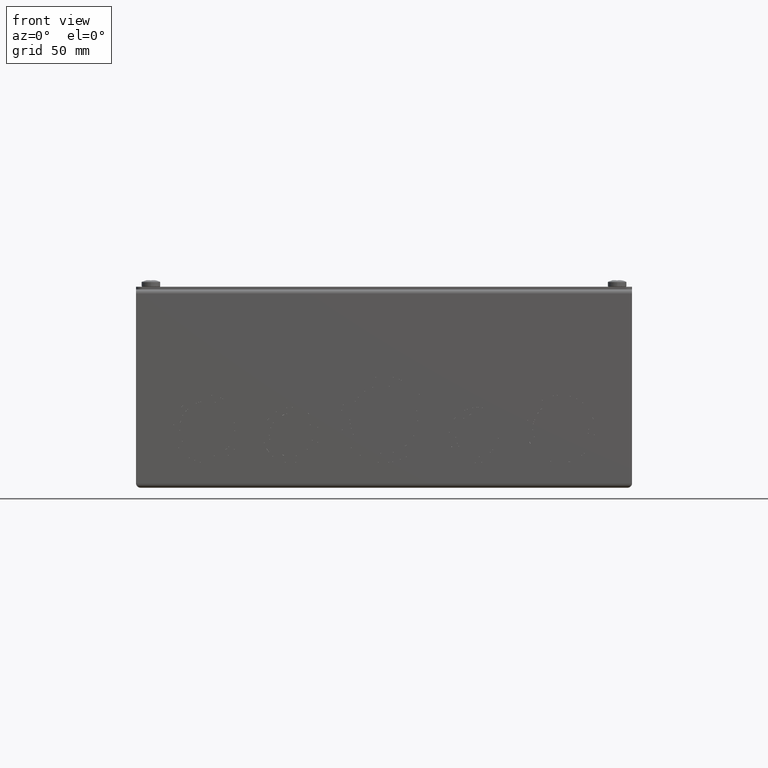
[diagram: clean part render]
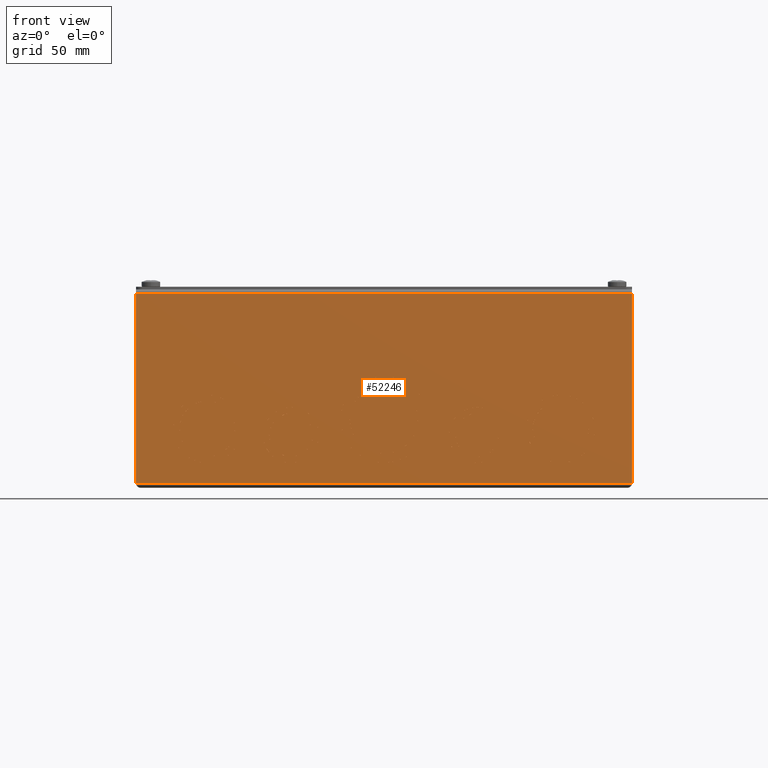
[diagram: same view with one face highlighted and labeled with its STEP entity id]
A machine part, front view. The second image highlights one B-rep face of the part: STEP entity #52246.
In plain terms, the highlighted planar face has unit normal (0, 1, 0).
Its self-contained STEP definition (entity closure, byte-faithful):
#4234=FACE_BOUND('',#9762,.T.);
#4235=FACE_BOUND('',#9763,.T.);
#4236=FACE_BOUND('',#9764,.T.);
#4237=FACE_BOUND('',#9765,.T.);
#4238=FACE_BOUND('',#9766,.T.);
#4239=FACE_BOUND('',#9767,.T.);
#4240=FACE_BOUND('',#9768,.T.);
#4241=FACE_BOUND('',#9769,.T.);
#4242=FACE_BOUND('',#9770,.T.);
#4243=FACE_BOUND('',#9771,.T.);
#4244=FACE_BOUND('',#9772,.T.);
#4245=FACE_BOUND('',#9773,.T.);
#4246=FACE_BOUND('',#9774,.T.);
#4247=FACE_BOUND('',#9775,.T.);
#4248=FACE_BOUND('',#9776,.T.);
#4249=FACE_BOUND('',#9777,.T.);
#4250=FACE_BOUND('',#9778,.T.);
#4251=FACE_BOUND('',#9779,.T.);
#4252=FACE_BOUND('',#9780,.T.);
#4253=FACE_BOUND('',#9781,.T.);
#4798=PLANE('',#55635);
#6811=FACE_OUTER_BOUND('',#9761,.T.);
#9761=EDGE_LOOP('',(#39174,#39175,#39176,#39177));
#9762=EDGE_LOOP('',(#39178,#39179,#39180,#39181));
#9763=EDGE_LOOP('',(#39182,#39183,#39184,#39185));
#9764=EDGE_LOOP('',(#39186,#39187,#39188,#39189));
#9765=EDGE_LOOP('',(#39190,#39191,#39192,#39193));
#9766=EDGE_LOOP('',(#39194,#39195,#39196,#39197));
#9767=EDGE_LOOP('',(#39198,#39199,#39200,#39201));
#9768=EDGE_LOOP('',(#39202,#39203,#39204,#39205));
#9769=EDGE_LOOP('',(#39206,#39207,#39208,#39209));
#9770=EDGE_LOOP('',(#39210,#39211,#39212,#39213));
#9771=EDGE_LOOP('',(#39214,#39215,#39216,#39217));
#9772=EDGE_LOOP('',(#39218,#39219,#39220,#39221));
#9773=EDGE_LOOP('',(#39222,#39223,#39224,#39225));
#9774=EDGE_LOOP('',(#39226,#39227,#39228,#39229));
#9775=EDGE_LOOP('',(#39230,#39231,#39232,#39233));
#9776=EDGE_LOOP('',(#39234,#39235,#39236,#39237));
#9777=EDGE_LOOP('',(#39238,#39239,#39240,#39241));
#9778=EDGE_LOOP('',(#39242,#39243,#39244,#39245));
#9779=EDGE_LOOP('',(#39246,#39247,#39248,#39249));
#9780=EDGE_LOOP('',(#39250,#39251,#39252,#39253));
#9781=EDGE_LOOP('',(#39254,#39255,#39256,#39257));
#12433=LINE('',#69019,#17938);
#12440=LINE('',#69038,#17945);
#12447=LINE('',#69055,#17952);
#12455=LINE('',#69082,#17960);
#12465=LINE('',#69115,#17970);
#12472=LINE('',#69134,#17977);
#12481=LINE('',#69163,#17986);
#12488=LINE('',#69182,#17993);
#12497=LINE('',#69211,#18002);
#12504=LINE('',#69230,#18009);
#12511=LINE('',#69247,#18016);
#12519=LINE('',#69274,#18024);
#12527=LINE('',#69295,#18032);
#12535=LINE('',#69322,#18040);
#12543=LINE('',#69343,#18048);
#12551=LINE('',#69370,#18056);
#12559=LINE('',#69391,#18064);
#12567=LINE('',#69418,#18072);
#12575=LINE('',#69439,#18080);
#12583=LINE('',#69466,#18088);
#12593=LINE('',#69499,#18098);
#12600=LINE('',#69518,#18105);
#12609=LINE('',#69547,#18114);
#12616=LINE('',#69566,#18121);
#12623=LINE('',#69583,#18128);
#12631=LINE('',#69610,#18136);
#12639=LINE('',#69631,#18144);
#12647=LINE('',#69658,#18152);
#12657=LINE('',#69691,#18162);
#12664=LINE('',#69710,#18169);
#12671=LINE('',#69727,#18176);
#12679=LINE('',#69754,#18184);
#12687=LINE('',#69775,#18192);
#12695=LINE('',#69802,#18200);
#12703=LINE('',#69823,#18208);
#12711=LINE('',#69850,#18216);
#12721=LINE('',#69883,#18226);
#12728=LINE('',#69902,#18233);
#12735=LINE('',#69919,#18240);
#12743=LINE('',#69946,#18248);
#13286=LINE('',#71463,#18791);
#13289=LINE('',#71469,#18794);
#13314=LINE('',#71946,#18819);
#13318=LINE('',#71954,#18823);
#17938=VECTOR('',#57817,0.393700787401575);
#17945=VECTOR('',#57840,0.393700787401575);
#17952=VECTOR('',#57851,0.393700787401575);
#17960=VECTOR('',#57881,0.393700787401575);
#17970=VECTOR('',#57913,0.393700787401575);
#17977=VECTOR('',#57936,0.393700787401575);
#17986=VECTOR('',#57961,0.393700787401575);
#17993=VECTOR('',#57984,0.393700787401575);
#18002=VECTOR('',#58009,0.393700787401575);
#18009=VECTOR('',#58032,0.393700787401575);
#18016=VECTOR('',#58043,0.393700787401575);
#18024=VECTOR('',#58073,0.393700787401575);
#18032=VECTOR('',#58091,0.393700787401575);
#18040=VECTOR('',#58121,0.393700787401575);
#18048=VECTOR('',#58139,0.393700787401575);
#18056=VECTOR('',#58169,0.393700787401575);
#18064=VECTOR('',#58187,0.393700787401575);
#18072=VECTOR('',#58217,0.393700787401575);
#18080=VECTOR('',#58235,0.393700787401575);
#18088=VECTOR('',#58265,0.393700787401575);
#18098=VECTOR('',#58297,0.393700787401575);
#18105=VECTOR('',#58320,0.393700787401575);
#18114=VECTOR('',#58345,0.393700787401575);
#18121=VECTOR('',#58368,0.393700787401575);
#18128=VECTOR('',#58379,0.393700787401575);
#18136=VECTOR('',#58409,0.393700787401575);
#18144=VECTOR('',#58427,0.393700787401575);
#18152=VECTOR('',#58457,0.393700787401575);
#18162=VECTOR('',#58489,0.393700787401575);
#18169=VECTOR('',#58512,0.393700787401575);
#18176=VECTOR('',#58523,0.393700787401575);
#18184=VECTOR('',#58553,0.393700787401575);
#18192=VECTOR('',#58571,0.393700787401575);
#18200=VECTOR('',#58601,0.393700787401575);
#18208=VECTOR('',#58619,0.393700787401575);
#18216=VECTOR('',#58649,0.393700787401575);
#18226=VECTOR('',#58681,0.393700787401575);
#18233=VECTOR('',#58704,0.393700787401575);
#18240=VECTOR('',#58715,0.393700787401575);
#18248=VECTOR('',#58745,0.393700787401575);
#18791=VECTOR('',#60282,0.393700787401575);
#18794=VECTOR('',#60287,0.393700787401575);
#18819=VECTOR('',#60362,0.393700787401575);
#18823=VECTOR('',#60374,0.393700787401575);
#23324=CIRCLE('',#54791,0.6875);
#23328=CIRCLE('',#54800,0.6874);
#23332=CIRCLE('',#54809,0.5625);
#23336=CIRCLE('',#54817,0.5624);
#23340=CIRCLE('',#54823,0.5624);
#23344=CIRCLE('',#54832,0.5625);
#23348=CIRCLE('',#54839,0.4374);
#23352=CIRCLE('',#54848,0.4375);
#23356=CIRCLE('',#54855,0.4374);
#23360=CIRCLE('',#54864,0.4375);
#23364=CIRCLE('',#54873,0.8749);
#23368=CIRCLE('',#54881,0.875);
#23372=CIRCLE('',#54889,0.6875);
#23376=CIRCLE('',#54897,0.6874);
#23380=CIRCLE('',#54905,0.6875);
#23384=CIRCLE('',#54913,0.6874);
#23388=CIRCLE('',#54921,0.5625);
#23392=CIRCLE('',#54929,0.5624);
#23396=CIRCLE('',#54937,0.5625);
#23400=CIRCLE('',#54945,0.5624);
#23404=CIRCLE('',#54951,0.5624);
#23408=CIRCLE('',#54960,0.5625);
#23412=CIRCLE('',#54967,0.5624);
#23416=CIRCLE('',#54976,0.5625);
#23420=CIRCLE('',#54985,0.6874);
#23424=CIRCLE('',#54993,0.6875);
#23428=CIRCLE('',#55001,0.6874);
#23432=CIRCLE('',#55009,0.6875);
#23436=CIRCLE('',#55015,0.875);
#23440=CIRCLE('',#55024,0.8749);
#23444=CIRCLE('',#55033,0.4375);
#23448=CIRCLE('',#55041,0.4374);
#23452=CIRCLE('',#55049,0.4375);
#23456=CIRCLE('',#55057,0.4374);
#23460=CIRCLE('',#55065,0.5625);
#23464=CIRCLE('',#55073,0.5624);
#23468=CIRCLE('',#55079,0.5624);
#23472=CIRCLE('',#55088,0.5625);
#23476=CIRCLE('',#55097,0.6874);
#23480=CIRCLE('',#55105,0.6875);
#24043=VERTEX_POINT('',#69004);
#24044=VERTEX_POINT('',#69006);
#24048=VERTEX_POINT('',#69018);
#24052=VERTEX_POINT('',#69033);
#24059=VERTEX_POINT('',#69052);
#24060=VERTEX_POINT('',#69054);
#24064=VERTEX_POINT('',#69066);
#24068=VERTEX_POINT('',#69081);
#24075=VERTEX_POINT('',#69100);
#24076=VERTEX_POINT('',#69102);
#24080=VERTEX_POINT('',#69114);
#24084=VERTEX_POINT('',#69129);
#24091=VERTEX_POINT('',#69148);
#24092=VERTEX_POINT('',#69150);
#24096=VERTEX_POINT('',#69162);
#24100=VERTEX_POINT('',#69177);
#24107=VERTEX_POINT('',#69196);
#24108=VERTEX_POINT('',#69198);
#24112=VERTEX_POINT('',#69210);
#24116=VERTEX_POINT('',#69225);
#24123=VERTEX_POINT('',#69244);
#24124=VERTEX_POINT('',#69246);
#24128=VERTEX_POINT('',#69258);
#24132=VERTEX_POINT('',#69273);
#24139=VERTEX_POINT('',#69292);
#24140=VERTEX_POINT('',#69294);
#24144=VERTEX_POINT('',#69306);
#24148=VERTEX_POINT('',#69321);
#24155=VERTEX_POINT('',#69340);
#24156=VERTEX_POINT('',#69342);
#24160=VERTEX_POINT('',#69354);
#24164=VERTEX_POINT('',#69369);
#24171=VERTEX_POINT('',#69388);
#24172=VERTEX_POINT('',#69390);
#24176=VERTEX_POINT('',#69402);
#24180=VERTEX_POINT('',#69417);
#24187=VERTEX_POINT('',#69436);
#24188=VERTEX_POINT('',#69438);
#24192=VERTEX_POINT('',#69450);
#24196=VERTEX_POINT('',#69465);
#24203=VERTEX_POINT('',#69484);
#24204=VERTEX_POINT('',#69486);
#24208=VERTEX_POINT('',#69498);
#24212=VERTEX_POINT('',#69513);
#24219=VERTEX_POINT('',#69532);
#24220=VERTEX_POINT('',#69534);
#24224=VERTEX_POINT('',#69546);
#24228=VERTEX_POINT('',#69561);
#24235=VERTEX_POINT('',#69580);
#24236=VERTEX_POINT('',#69582);
#24240=VERTEX_POINT('',#69594);
#24244=VERTEX_POINT('',#69609);
#24251=VERTEX_POINT('',#69628);
#24252=VERTEX_POINT('',#69630);
#24256=VERTEX_POINT('',#69642);
#24260=VERTEX_POINT('',#69657);
#24267=VERTEX_POINT('',#69676);
#24268=VERTEX_POINT('',#69678);
#24272=VERTEX_POINT('',#69690);
#24276=VERTEX_POINT('',#69705);
#24283=VERTEX_POINT('',#69724);
#24284=VERTEX_POINT('',#69726);
#24288=VERTEX_POINT('',#69738);
#24292=VERTEX_POINT('',#69753);
#24299=VERTEX_POINT('',#69772);
#24300=VERTEX_POINT('',#69774);
#24304=VERTEX_POINT('',#69786);
#24308=VERTEX_POINT('',#69801);
#24315=VERTEX_POINT('',#69820);
#24316=VERTEX_POINT('',#69822);
#24320=VERTEX_POINT('',#69834);
#24324=VERTEX_POINT('',#69849);
#24331=VERTEX_POINT('',#69868);
#24332=VERTEX_POINT('',#69870);
#24336=VERTEX_POINT('',#69882);
#24340=VERTEX_POINT('',#69897);
#24347=VERTEX_POINT('',#69916);
#24348=VERTEX_POINT('',#69918);
#24352=VERTEX_POINT('',#69930);
#24356=VERTEX_POINT('',#69945);
#24832=VERTEX_POINT('',#71450);
#24833=VERTEX_POINT('',#71454);
#24835=VERTEX_POINT('',#71467);
#24849=VERTEX_POINT('',#71614);
#29036=EDGE_CURVE('',#24044,#24043,#23324,.T.);
#29042=EDGE_CURVE('',#24048,#24044,#12433,.T.);
#29050=EDGE_CURVE('',#24052,#24048,#23328,.T.);
#29053=EDGE_CURVE('',#24043,#24052,#12440,.T.);
#29060=EDGE_CURVE('',#24060,#24059,#12447,.T.);
#29066=EDGE_CURVE('',#24064,#24060,#23332,.T.);
#29074=EDGE_CURVE('',#24068,#24064,#12455,.T.);
#29077=EDGE_CURVE('',#24059,#24068,#23336,.T.);
#29084=EDGE_CURVE('',#24076,#24075,#23340,.T.);
#29090=EDGE_CURVE('',#24080,#24076,#12465,.T.);
#29098=EDGE_CURVE('',#24084,#24080,#23344,.T.);
#29101=EDGE_CURVE('',#24075,#24084,#12472,.T.);
#29108=EDGE_CURVE('',#24092,#24091,#23348,.T.);
#29114=EDGE_CURVE('',#24096,#24092,#12481,.T.);
#29122=EDGE_CURVE('',#24100,#24096,#23352,.T.);
#29125=EDGE_CURVE('',#24091,#24100,#12488,.T.);
#29132=EDGE_CURVE('',#24108,#24107,#23356,.T.);
#29138=EDGE_CURVE('',#24112,#24108,#12497,.T.);
#29146=EDGE_CURVE('',#24116,#24112,#23360,.T.);
#29149=EDGE_CURVE('',#24107,#24116,#12504,.T.);
#29156=EDGE_CURVE('',#24124,#24123,#12511,.T.);
#29162=EDGE_CURVE('',#24128,#24124,#23364,.T.);
#29170=EDGE_CURVE('',#24132,#24128,#12519,.T.);
#29173=EDGE_CURVE('',#24123,#24132,#23368,.T.);
#29180=EDGE_CURVE('',#24140,#24139,#12527,.T.);
#29186=EDGE_CURVE('',#24144,#24140,#23372,.T.);
#29194=EDGE_CURVE('',#24148,#24144,#12535,.T.);
#29197=EDGE_CURVE('',#24139,#24148,#23376,.T.);
#29204=EDGE_CURVE('',#24156,#24155,#12543,.T.);
#29210=EDGE_CURVE('',#24160,#24156,#23380,.T.);
#29218=EDGE_CURVE('',#24164,#24160,#12551,.T.);
#29221=EDGE_CURVE('',#24155,#24164,#23384,.T.);
#29228=EDGE_CURVE('',#24172,#24171,#12559,.T.);
#29234=EDGE_CURVE('',#24176,#24172,#23388,.T.);
#29242=EDGE_CURVE('',#24180,#24176,#12567,.T.);
#29245=EDGE_CURVE('',#24171,#24180,#23392,.T.);
#29252=EDGE_CURVE('',#24188,#24187,#12575,.T.);
#29258=EDGE_CURVE('',#24192,#24188,#23396,.T.);
#29266=EDGE_CURVE('',#24196,#24192,#12583,.T.);
#29269=EDGE_CURVE('',#24187,#24196,#23400,.T.);
#29276=EDGE_CURVE('',#24204,#24203,#23404,.T.);
#29282=EDGE_CURVE('',#24208,#24204,#12593,.T.);
#29290=EDGE_CURVE('',#24212,#24208,#23408,.T.);
#29293=EDGE_CURVE('',#24203,#24212,#12600,.T.);
#29300=EDGE_CURVE('',#24220,#24219,#23412,.T.);
#29306=EDGE_CURVE('',#24224,#24220,#12609,.T.);
#29314=EDGE_CURVE('',#24228,#24224,#23416,.T.);
#29317=EDGE_CURVE('',#24219,#24228,#12616,.T.);
#29324=EDGE_CURVE('',#24236,#24235,#12623,.T.);
#29330=EDGE_CURVE('',#24240,#24236,#23420,.T.);
#29338=EDGE_CURVE('',#24244,#24240,#12631,.T.);
#29341=EDGE_CURVE('',#24235,#24244,#23424,.T.);
#29348=EDGE_CURVE('',#24252,#24251,#12639,.T.);
#29354=EDGE_CURVE('',#24256,#24252,#23428,.T.);
#29362=EDGE_CURVE('',#24260,#24256,#12647,.T.);
#29365=EDGE_CURVE('',#24251,#24260,#23432,.T.);
#29372=EDGE_CURVE('',#24268,#24267,#23436,.T.);
#29378=EDGE_CURVE('',#24272,#24268,#12657,.T.);
#29386=EDGE_CURVE('',#24276,#24272,#23440,.T.);
#29389=EDGE_CURVE('',#24267,#24276,#12664,.T.);
#29396=EDGE_CURVE('',#24284,#24283,#12671,.T.);
#29402=EDGE_CURVE('',#24288,#24284,#23444,.T.);
#29410=EDGE_CURVE('',#24292,#24288,#12679,.T.);
#29413=EDGE_CURVE('',#24283,#24292,#23448,.T.);
#29420=EDGE_CURVE('',#24300,#24299,#12687,.T.);
#29426=EDGE_CURVE('',#24304,#24300,#23452,.T.);
#29434=EDGE_CURVE('',#24308,#24304,#12695,.T.);
#29437=EDGE_CURVE('',#24299,#24308,#23456,.T.);
#29444=EDGE_CURVE('',#24316,#24315,#12703,.T.);
#29450=EDGE_CURVE('',#24320,#24316,#23460,.T.);
#29458=EDGE_CURVE('',#24324,#24320,#12711,.T.);
#29461=EDGE_CURVE('',#24315,#24324,#23464,.T.);
#29468=EDGE_CURVE('',#24332,#24331,#23468,.T.);
#29474=EDGE_CURVE('',#24336,#24332,#12721,.T.);
#29482=EDGE_CURVE('',#24340,#24336,#23472,.T.);
#29485=EDGE_CURVE('',#24331,#24340,#12728,.T.);
#29492=EDGE_CURVE('',#24348,#24347,#12735,.T.);
#29498=EDGE_CURVE('',#24352,#24348,#23476,.T.);
#29506=EDGE_CURVE('',#24356,#24352,#12743,.T.);
#29509=EDGE_CURVE('',#24347,#24356,#23480,.T.);
#30267=EDGE_CURVE('',#24832,#24833,#13286,.T.);
#30270=EDGE_CURVE('',#24833,#24835,#13289,.T.);
#30311=EDGE_CURVE('',#24835,#24849,#13314,.T.);
#30315=EDGE_CURVE('',#24849,#24832,#13318,.T.);
#39174=ORIENTED_EDGE('',*,*,#30267,.T.);
#39175=ORIENTED_EDGE('',*,*,#30270,.T.);
#39176=ORIENTED_EDGE('',*,*,#30311,.T.);
#39177=ORIENTED_EDGE('',*,*,#30315,.T.);
#39178=ORIENTED_EDGE('',*,*,#29050,.T.);
#39179=ORIENTED_EDGE('',*,*,#29042,.T.);
#39180=ORIENTED_EDGE('',*,*,#29036,.T.);
#39181=ORIENTED_EDGE('',*,*,#29053,.T.);
#39182=ORIENTED_EDGE('',*,*,#29074,.T.);
#39183=ORIENTED_EDGE('',*,*,#29066,.T.);
#39184=ORIENTED_EDGE('',*,*,#29060,.T.);
#39185=ORIENTED_EDGE('',*,*,#29077,.T.);
#39186=ORIENTED_EDGE('',*,*,#29098,.T.);
#39187=ORIENTED_EDGE('',*,*,#29090,.T.);
#39188=ORIENTED_EDGE('',*,*,#29084,.T.);
#39189=ORIENTED_EDGE('',*,*,#29101,.T.);
#39190=ORIENTED_EDGE('',*,*,#29122,.T.);
#39191=ORIENTED_EDGE('',*,*,#29114,.T.);
#39192=ORIENTED_EDGE('',*,*,#29108,.T.);
#39193=ORIENTED_EDGE('',*,*,#29125,.T.);
#39194=ORIENTED_EDGE('',*,*,#29146,.T.);
#39195=ORIENTED_EDGE('',*,*,#29138,.T.);
#39196=ORIENTED_EDGE('',*,*,#29132,.T.);
#39197=ORIENTED_EDGE('',*,*,#29149,.T.);
#39198=ORIENTED_EDGE('',*,*,#29170,.T.);
#39199=ORIENTED_EDGE('',*,*,#29162,.T.);
#39200=ORIENTED_EDGE('',*,*,#29156,.T.);
#39201=ORIENTED_EDGE('',*,*,#29173,.T.);
#39202=ORIENTED_EDGE('',*,*,#29194,.T.);
#39203=ORIENTED_EDGE('',*,*,#29186,.T.);
#39204=ORIENTED_EDGE('',*,*,#29180,.T.);
#39205=ORIENTED_EDGE('',*,*,#29197,.T.);
#39206=ORIENTED_EDGE('',*,*,#29218,.T.);
#39207=ORIENTED_EDGE('',*,*,#29210,.T.);
#39208=ORIENTED_EDGE('',*,*,#29204,.T.);
#39209=ORIENTED_EDGE('',*,*,#29221,.T.);
#39210=ORIENTED_EDGE('',*,*,#29242,.T.);
#39211=ORIENTED_EDGE('',*,*,#29234,.T.);
#39212=ORIENTED_EDGE('',*,*,#29228,.T.);
#39213=ORIENTED_EDGE('',*,*,#29245,.T.);
#39214=ORIENTED_EDGE('',*,*,#29266,.T.);
#39215=ORIENTED_EDGE('',*,*,#29258,.T.);
#39216=ORIENTED_EDGE('',*,*,#29252,.T.);
#39217=ORIENTED_EDGE('',*,*,#29269,.T.);
#39218=ORIENTED_EDGE('',*,*,#29290,.T.);
#39219=ORIENTED_EDGE('',*,*,#29282,.T.);
#39220=ORIENTED_EDGE('',*,*,#29276,.T.);
#39221=ORIENTED_EDGE('',*,*,#29293,.T.);
#39222=ORIENTED_EDGE('',*,*,#29314,.T.);
#39223=ORIENTED_EDGE('',*,*,#29306,.T.);
#39224=ORIENTED_EDGE('',*,*,#29300,.T.);
#39225=ORIENTED_EDGE('',*,*,#29317,.T.);
#39226=ORIENTED_EDGE('',*,*,#29338,.T.);
#39227=ORIENTED_EDGE('',*,*,#29330,.T.);
#39228=ORIENTED_EDGE('',*,*,#29324,.T.);
#39229=ORIENTED_EDGE('',*,*,#29341,.T.);
#39230=ORIENTED_EDGE('',*,*,#29362,.T.);
#39231=ORIENTED_EDGE('',*,*,#29354,.T.);
#39232=ORIENTED_EDGE('',*,*,#29348,.T.);
#39233=ORIENTED_EDGE('',*,*,#29365,.T.);
#39234=ORIENTED_EDGE('',*,*,#29386,.T.);
#39235=ORIENTED_EDGE('',*,*,#29378,.T.);
#39236=ORIENTED_EDGE('',*,*,#29372,.T.);
#39237=ORIENTED_EDGE('',*,*,#29389,.T.);
#39238=ORIENTED_EDGE('',*,*,#29410,.T.);
#39239=ORIENTED_EDGE('',*,*,#29402,.T.);
#39240=ORIENTED_EDGE('',*,*,#29396,.T.);
#39241=ORIENTED_EDGE('',*,*,#29413,.T.);
#39242=ORIENTED_EDGE('',*,*,#29434,.T.);
#39243=ORIENTED_EDGE('',*,*,#29426,.T.);
#39244=ORIENTED_EDGE('',*,*,#29420,.T.);
#39245=ORIENTED_EDGE('',*,*,#29437,.T.);
#39246=ORIENTED_EDGE('',*,*,#29458,.T.);
#39247=ORIENTED_EDGE('',*,*,#29450,.T.);
#39248=ORIENTED_EDGE('',*,*,#29444,.T.);
#39249=ORIENTED_EDGE('',*,*,#29461,.T.);
#39250=ORIENTED_EDGE('',*,*,#29482,.T.);
#39251=ORIENTED_EDGE('',*,*,#29474,.T.);
#39252=ORIENTED_EDGE('',*,*,#29468,.T.);
#39253=ORIENTED_EDGE('',*,*,#29485,.T.);
#39254=ORIENTED_EDGE('',*,*,#29506,.T.);
#39255=ORIENTED_EDGE('',*,*,#29498,.T.);
#39256=ORIENTED_EDGE('',*,*,#29492,.T.);
#39257=ORIENTED_EDGE('',*,*,#29509,.T.);
#52246=ADVANCED_FACE('',(#6811,#4234,#4235,#4236,#4237,#4238,#4239,#4240,
#4241,#4242,#4243,#4244,#4245,#4246,#4247,#4248,#4249,#4250,#4251,#4252,
#4253),#4798,.F.);
#54791=AXIS2_PLACEMENT_3D('',#69007,#57806,#57807);
#54800=AXIS2_PLACEMENT_3D('',#69034,#57834,#57835);
#54809=AXIS2_PLACEMENT_3D('',#69067,#57864,#57865);
#54817=AXIS2_PLACEMENT_3D('',#69086,#57887,#57888);
#54823=AXIS2_PLACEMENT_3D('',#69103,#57902,#57903);
#54832=AXIS2_PLACEMENT_3D('',#69130,#57930,#57931);
#54839=AXIS2_PLACEMENT_3D('',#69151,#57950,#57951);
#54848=AXIS2_PLACEMENT_3D('',#69178,#57978,#57979);
#54855=AXIS2_PLACEMENT_3D('',#69199,#57998,#57999);
#54864=AXIS2_PLACEMENT_3D('',#69226,#58026,#58027);
#54873=AXIS2_PLACEMENT_3D('',#69259,#58056,#58057);
#54881=AXIS2_PLACEMENT_3D('',#69278,#58079,#58080);
#54889=AXIS2_PLACEMENT_3D('',#69307,#58104,#58105);
#54897=AXIS2_PLACEMENT_3D('',#69326,#58127,#58128);
#54905=AXIS2_PLACEMENT_3D('',#69355,#58152,#58153);
#54913=AXIS2_PLACEMENT_3D('',#69374,#58175,#58176);
#54921=AXIS2_PLACEMENT_3D('',#69403,#58200,#58201);
#54929=AXIS2_PLACEMENT_3D('',#69422,#58223,#58224);
#54937=AXIS2_PLACEMENT_3D('',#69451,#58248,#58249);
#54945=AXIS2_PLACEMENT_3D('',#69470,#58271,#58272);
#54951=AXIS2_PLACEMENT_3D('',#69487,#58286,#58287);
#54960=AXIS2_PLACEMENT_3D('',#69514,#58314,#58315);
#54967=AXIS2_PLACEMENT_3D('',#69535,#58334,#58335);
#54976=AXIS2_PLACEMENT_3D('',#69562,#58362,#58363);
#54985=AXIS2_PLACEMENT_3D('',#69595,#58392,#58393);
#54993=AXIS2_PLACEMENT_3D('',#69614,#58415,#58416);
#55001=AXIS2_PLACEMENT_3D('',#69643,#58440,#58441);
#55009=AXIS2_PLACEMENT_3D('',#69662,#58463,#58464);
#55015=AXIS2_PLACEMENT_3D('',#69679,#58478,#58479);
#55024=AXIS2_PLACEMENT_3D('',#69706,#58506,#58507);
#55033=AXIS2_PLACEMENT_3D('',#69739,#58536,#58537);
#55041=AXIS2_PLACEMENT_3D('',#69758,#58559,#58560);
#55049=AXIS2_PLACEMENT_3D('',#69787,#58584,#58585);
#55057=AXIS2_PLACEMENT_3D('',#69806,#58607,#58608);
#55065=AXIS2_PLACEMENT_3D('',#69835,#58632,#58633);
#55073=AXIS2_PLACEMENT_3D('',#69854,#58655,#58656);
#55079=AXIS2_PLACEMENT_3D('',#69871,#58670,#58671);
#55088=AXIS2_PLACEMENT_3D('',#69898,#58698,#58699);
#55097=AXIS2_PLACEMENT_3D('',#69931,#58728,#58729);
#55105=AXIS2_PLACEMENT_3D('',#69950,#58751,#58752);
#55635=AXIS2_PLACEMENT_3D('',#71962,#60387,#60388);
#57806=DIRECTION('center_axis',(1.75198115615465E-32,1.,3.37621368633969E-31));
#57807=DIRECTION('ref_axis',(-1.,0.,0.));
#57817=DIRECTION('',(2.17642743684023E-13,3.37621368633965E-31,-1.));
#57834=DIRECTION('center_axis',(-1.75198115615465E-32,-1.,-3.37621368633969E-31));
#57835=DIRECTION('ref_axis',(1.,0.,0.));
#57840=DIRECTION('',(-3.26464115526035E-13,3.37621368633975E-31,-1.));
#57851=DIRECTION('',(1.39316847513431E-11,-3.37621368634213E-31,1.));
#57864=DIRECTION('center_axis',(1.75198115615465E-32,1.,3.37621368633969E-31));
#57865=DIRECTION('ref_axis',(-1.,0.,0.));
#57881=DIRECTION('',(-1.39316847513552E-11,-3.37621368633725E-31,1.));
#57887=DIRECTION('center_axis',(-1.75198115615465E-32,-1.,-3.37621368633969E-31));
#57888=DIRECTION('ref_axis',(1.,0.,0.));
#57902=DIRECTION('center_axis',(-1.75198115615465E-32,-1.,-3.37621368633969E-31));
#57903=DIRECTION('ref_axis',(1.,0.,0.));
#57913=DIRECTION('',(-1.39316847513552E-11,3.37621368634213E-31,-1.));
#57930=DIRECTION('center_axis',(1.75198115615465E-32,1.,3.37621368633969E-31));
#57931=DIRECTION('ref_axis',(-1.,0.,0.));
#57936=DIRECTION('',(1.39316847513431E-11,3.37621368633725E-31,-1.));
#57950=DIRECTION('center_axis',(-1.75198115615465E-32,-1.,-3.37621368633969E-31));
#57951=DIRECTION('ref_axis',(1.,0.,0.));
#57961=DIRECTION('',(-6.96423270686278E-12,-3.37621368633847E-31,1.));
#57978=DIRECTION('center_axis',(1.75198115615465E-32,1.,3.37621368633969E-31));
#57979=DIRECTION('ref_axis',(-1.,0.,0.));
#57984=DIRECTION('',(5.91506275761856E-63,-3.37621368633969E-31,1.));
#57998=DIRECTION('center_axis',(-1.75198115615465E-32,-1.,-3.37621368633969E-31));
#57999=DIRECTION('ref_axis',(1.,0.,0.));
#58009=DIRECTION('',(6.96423270685065E-12,-3.37621368634091E-31,1.));
#58026=DIRECTION('center_axis',(1.75198115615465E-32,1.,3.37621368633969E-31));
#58027=DIRECTION('ref_axis',(-1.,0.,0.));
#58032=DIRECTION('',(-6.96423270685671E-12,-3.37621368633847E-31,1.));
#58043=DIRECTION('',(-1.,1.75198115615465E-32,0.));
#58056=DIRECTION('center_axis',(-1.75198115615465E-32,-1.,-3.37621368633969E-31));
#58057=DIRECTION('ref_axis',(1.,0.,0.));
#58073=DIRECTION('',(-1.,1.75198115615465E-32,0.));
#58079=DIRECTION('center_axis',(1.75198115615465E-32,1.,3.37621368633969E-31));
#58080=DIRECTION('ref_axis',(-1.,0.,0.));
#58091=DIRECTION('',(1.,-1.75198115609586E-32,-1.74114194947218E-12));
#58104=DIRECTION('center_axis',(1.75198115615465E-32,1.,3.37621368633969E-31));
#58105=DIRECTION('ref_axis',(-1.,0.,0.));
#58121=DIRECTION('',(1.,-1.7519811559783E-32,-5.22342584843474E-12));
#58127=DIRECTION('center_axis',(-1.75198115615465E-32,-1.,-3.37621368633969E-31));
#58128=DIRECTION('ref_axis',(1.,0.,0.));
#58139=DIRECTION('',(1.,-1.75198115609586E-32,-1.74114194947825E-12));
#58152=DIRECTION('center_axis',(1.75198115615465E-32,1.,3.37621368633969E-31));
#58153=DIRECTION('ref_axis',(-1.,0.,0.));
#58169=DIRECTION('',(1.,-1.75198115621343E-32,1.74114194947218E-12));
#58175=DIRECTION('center_axis',(-1.75198115615465E-32,-1.,-3.37621368633969E-31));
#58176=DIRECTION('ref_axis',(1.,0.,0.));
#58187=DIRECTION('',(-1.,1.75198115609585E-32,1.74146059391334E-12));
#58200=DIRECTION('center_axis',(1.75198115615465E-32,1.,3.37621368633969E-31));
#58201=DIRECTION('ref_axis',(-1.,0.,0.));
#58217=DIRECTION('',(-1.,1.75198115621344E-32,-1.74146059392547E-12));
#58223=DIRECTION('center_axis',(-1.75198115615465E-32,-1.,-3.37621368633969E-31));
#58224=DIRECTION('ref_axis',(1.,0.,0.));
#58235=DIRECTION('',(-1.,1.75198115609585E-32,1.7414605939194E-12));
#58248=DIRECTION('center_axis',(1.75198115615465E-32,1.,3.37621368633969E-31));
#58249=DIRECTION('ref_axis',(-1.,0.,0.));
#58265=DIRECTION('',(-1.,1.75198115621344E-32,-1.7414605939194E-12));
#58271=DIRECTION('center_axis',(-1.75198115615465E-32,-1.,-3.37621368633969E-31));
#58272=DIRECTION('ref_axis',(1.,0.,0.));
#58286=DIRECTION('center_axis',(-1.75198115615465E-32,-1.,-3.37621368633969E-31));
#58287=DIRECTION('ref_axis',(1.,0.,0.));
#58297=DIRECTION('',(1.,-1.75198115609585E-32,-1.7414605939194E-12));
#58314=DIRECTION('center_axis',(1.75198115615465E-32,1.,3.37621368633969E-31));
#58315=DIRECTION('ref_axis',(-1.,0.,0.));
#58320=DIRECTION('',(1.,-1.75198115621344E-32,1.7414605939194E-12));
#58334=DIRECTION('center_axis',(-1.75198115615465E-32,-1.,-3.37621368633969E-31));
#58335=DIRECTION('ref_axis',(1.,0.,0.));
#58345=DIRECTION('',(1.,-1.75198115609585E-32,-1.74146059392547E-12));
#58362=DIRECTION('center_axis',(1.75198115615465E-32,1.,3.37621368633969E-31));
#58363=DIRECTION('ref_axis',(-1.,0.,0.));
#58368=DIRECTION('',(1.,-1.75198115621344E-32,1.74146059391334E-12));
#58379=DIRECTION('',(-1.,1.75198115609586E-32,1.74114194947825E-12));
#58392=DIRECTION('center_axis',(-1.75198115615465E-32,-1.,-3.37621368633969E-31));
#58393=DIRECTION('ref_axis',(1.,0.,0.));
#58409=DIRECTION('',(-1.,1.75198115621343E-32,-1.74114194947218E-12));
#58415=DIRECTION('center_axis',(1.75198115615465E-32,1.,3.37621368633969E-31));
#58416=DIRECTION('ref_axis',(-1.,0.,0.));
#58427=DIRECTION('',(-1.,1.75198115609586E-32,1.74114194947218E-12));
#58440=DIRECTION('center_axis',(-1.75198115615465E-32,-1.,-3.37621368633969E-31));
#58441=DIRECTION('ref_axis',(1.,0.,0.));
#58457=DIRECTION('',(-1.,1.75198115609586E-32,1.74114194947825E-12));
#58463=DIRECTION('center_axis',(1.75198115615465E-32,1.,3.37621368633969E-31));
#58464=DIRECTION('ref_axis',(-1.,0.,0.));
#58478=DIRECTION('center_axis',(1.75198115615465E-32,1.,3.37621368633969E-31));
#58479=DIRECTION('ref_axis',(-1.,0.,0.));
#58489=DIRECTION('',(1.,-1.75198115615465E-32,0.));
#58506=DIRECTION('center_axis',(-1.75198115615465E-32,-1.,-3.37621368633969E-31));
#58507=DIRECTION('ref_axis',(1.,0.,0.));
#58512=DIRECTION('',(1.,-1.75198115615465E-32,0.));
#58523=DIRECTION('',(-5.91506275761856E-63,3.37621368633969E-31,-1.));
#58536=DIRECTION('center_axis',(1.75198115615465E-32,1.,3.37621368633969E-31));
#58537=DIRECTION('ref_axis',(-1.,0.,0.));
#58553=DIRECTION('',(-5.91506275761856E-63,3.37621368633969E-31,-1.));
#58559=DIRECTION('center_axis',(-1.75198115615465E-32,-1.,-3.37621368633969E-31));
#58560=DIRECTION('ref_axis',(1.,0.,0.));
#58571=DIRECTION('',(-6.96423270685671E-12,3.37621368634091E-31,-1.));
#58584=DIRECTION('center_axis',(1.75198115615465E-32,1.,3.37621368633969E-31));
#58585=DIRECTION('ref_axis',(-1.,0.,0.));
#58601=DIRECTION('',(6.96423270685671E-12,3.37621368633847E-31,-1.));
#58607=DIRECTION('center_axis',(-1.75198115615465E-32,-1.,-3.37621368633969E-31));
#58608=DIRECTION('ref_axis',(1.,0.,0.));
#58619=DIRECTION('',(-1.39316847513795E-11,-3.37621368633725E-31,1.));
#58632=DIRECTION('center_axis',(1.75198115615465E-32,1.,3.37621368633969E-31));
#58633=DIRECTION('ref_axis',(-1.,0.,0.));
#58649=DIRECTION('',(1.39316847513552E-11,-3.37621368634213E-31,1.));
#58655=DIRECTION('center_axis',(-1.75198115615465E-32,-1.,-3.37621368633969E-31));
#58656=DIRECTION('ref_axis',(1.,0.,0.));
#58670=DIRECTION('center_axis',(-1.75198115615465E-32,-1.,-3.37621368633969E-31));
#58671=DIRECTION('ref_axis',(1.,0.,0.));
#58681=DIRECTION('',(-5.91506275761856E-63,3.37621368633969E-31,-1.));
#58698=DIRECTION('center_axis',(1.75198115615465E-32,1.,3.37621368633969E-31));
#58699=DIRECTION('ref_axis',(-1.,0.,0.));
#58704=DIRECTION('',(-5.91506275761856E-63,3.37621368633969E-31,-1.));
#58715=DIRECTION('',(3.26464115526035E-13,-3.37621368633975E-31,1.));
#58728=DIRECTION('center_axis',(-1.75198115615465E-32,-1.,-3.37621368633969E-31));
#58729=DIRECTION('ref_axis',(1.,0.,0.));
#58745=DIRECTION('',(-2.17642743684023E-13,-3.37621368633965E-31,1.));
#58751=DIRECTION('center_axis',(1.75198115615465E-32,1.,3.37621368633969E-31));
#58752=DIRECTION('ref_axis',(-1.,0.,0.));
#60282=DIRECTION('',(-1.,1.75198115615465E-32,0.));
#60287=DIRECTION('',(0.,-6.12323399573677E-17,-1.));
#60362=DIRECTION('',(1.,-1.75198115615465E-32,0.));
#60374=DIRECTION('',(0.,6.12323399573677E-17,1.));
#60387=DIRECTION('center_axis',(1.75198115615465E-32,1.,3.37621368633969E-31));
#60388=DIRECTION('ref_axis',(0.,-3.37621368633969E-31,1.));
#69004=CARTESIAN_POINT('',(-0.0624999999999997,-5.,2.05965319688146));
#69006=CARTESIAN_POINT('',(-0.0624999999999999,-5.,0.690346803118542));
#69007=CARTESIAN_POINT('Origin',(1.74838271594513E-16,-5.,1.375));
#69018=CARTESIAN_POINT('',(-0.0624999999999999,-5.,0.690447218981619));
#69019=CARTESIAN_POINT('',(-0.0625000000001424,-5.,1.34517340155926));
#69033=CARTESIAN_POINT('',(-0.0624999999999997,-5.,2.05955278101838));
#69034=CARTESIAN_POINT('Origin',(1.74838271594513E-16,-5.,1.375));
#69038=CARTESIAN_POINT('',(-0.0625000000000095,-5.,2.0297763905092));
#69052=CARTESIAN_POINT('',(3.613,-5.,0.627327026714069));
#69054=CARTESIAN_POINT('',(3.613,-5.,0.627226629224626));
#69055=CARTESIAN_POINT('',(3.61300000000956,-5.,1.31366351333187));
#69066=CARTESIAN_POINT('',(3.613,-5.,1.74777337077537));
#69067=CARTESIAN_POINT('Origin',(3.563,-5.,1.1875));
#69081=CARTESIAN_POINT('',(3.613,-5.,1.74767297328593));
#69082=CARTESIAN_POINT('',(3.61299999999824,-5.,1.87388668541285));
#69086=CARTESIAN_POINT('Origin',(3.563,-5.,1.1875));
#69100=CARTESIAN_POINT('',(-3.613,-5.,0.627327026714069));
#69102=CARTESIAN_POINT('',(-3.613,-5.,1.74767297328593));
#69103=CARTESIAN_POINT('Origin',(-3.563,-5.,1.1875));
#69114=CARTESIAN_POINT('',(-3.613,-5.,1.74777337077537));
#69115=CARTESIAN_POINT('',(-3.61299999999824,-5.,1.87383648666813));
#69129=CARTESIAN_POINT('',(-3.613,-5.,0.627226629224626));
#69130=CARTESIAN_POINT('Origin',(-3.563,-5.,1.1875));
#69134=CARTESIAN_POINT('',(-3.61300000000956,-5.,1.31361331458714));
#69148=CARTESIAN_POINT('',(1.915,-5.,1.49806717048005));
#69150=CARTESIAN_POINT('',(1.915,-5.,0.626932829519946));
#69151=CARTESIAN_POINT('Origin',(1.875,-5.,1.0625));
#69162=CARTESIAN_POINT('',(1.915,-5.,0.62683240882526));
#69163=CARTESIAN_POINT('',(1.91499999999522,-5.,1.31346641476664));
#69177=CARTESIAN_POINT('',(1.915,-5.,1.49816759117474));
#69178=CARTESIAN_POINT('Origin',(1.875,-5.,1.0625));
#69182=CARTESIAN_POINT('',(1.915,-5.,1.74908379558737));
#69196=CARTESIAN_POINT('',(-1.835,-5.,1.49806717048005));
#69198=CARTESIAN_POINT('',(-1.835,-5.,0.626932829519946));
#69199=CARTESIAN_POINT('Origin',(-1.875,-5.,1.0625));
#69210=CARTESIAN_POINT('',(-1.835,-5.,0.62683240882526));
#69211=CARTESIAN_POINT('',(-1.83499999999522,-5.,1.31346641476636));
#69225=CARTESIAN_POINT('',(-1.835,-5.,1.49816759117474));
#69226=CARTESIAN_POINT('Origin',(-1.875,-5.,1.0625));
#69230=CARTESIAN_POINT('',(-1.83500000000175,-5.,1.74908379558098));
#69244=CARTESIAN_POINT('',(-0.871779788708134,-5.,1.45));
#69246=CARTESIAN_POINT('',(-0.871679419282112,-5.,1.45));
#69247=CARTESIAN_POINT('',(-0.435889894354067,-5.,1.45));
#69258=CARTESIAN_POINT('',(0.871679419282112,-5.,1.45));
#69259=CARTESIAN_POINT('Origin',(1.74838271594513E-16,-5.,1.375));
#69273=CARTESIAN_POINT('',(0.871779788708135,-5.,1.45));
#69274=CARTESIAN_POINT('',(0.435839709641056,-5.,1.45));
#69278=CARTESIAN_POINT('Origin',(1.74838271594513E-16,-5.,1.375));
#69292=CARTESIAN_POINT('',(2.87844721898162,-5.,1.125));
#69294=CARTESIAN_POINT('',(2.87834680311854,-5.,1.125));
#69295=CARTESIAN_POINT('',(1.43922360949005,-5.,1.12500000000251));
#69306=CARTESIAN_POINT('',(4.24765319688146,-5.,1.125));
#69307=CARTESIAN_POINT('Origin',(3.563,-5.,1.1875));
#69321=CARTESIAN_POINT('',(4.24755278101838,-5.,1.125));
#69322=CARTESIAN_POINT('',(2.12382659843844,-5.,1.12500000001109));
#69326=CARTESIAN_POINT('Origin',(3.563,-5.,1.1875));
#69340=CARTESIAN_POINT('',(-4.24755278101838,-5.,1.125));
#69342=CARTESIAN_POINT('',(-4.24765319688146,-5.,1.125));
#69343=CARTESIAN_POINT('',(-2.12377639050995,-5.,1.1249999999963));
#69354=CARTESIAN_POINT('',(-2.87834680311854,-5.,1.125));
#69355=CARTESIAN_POINT('Origin',(-3.563,-5.,1.1875));
#69369=CARTESIAN_POINT('',(-2.87844721898162,-5.,1.125));
#69370=CARTESIAN_POINT('',(-1.43917340155851,-5.,1.12500000000251));
#69374=CARTESIAN_POINT('Origin',(-3.563,-5.,1.1875));
#69388=CARTESIAN_POINT('',(2.43517297328593,-5.,1.1125));
#69390=CARTESIAN_POINT('',(2.43527337077537,-5.,1.1125));
#69391=CARTESIAN_POINT('',(1.21758648664219,-5.,1.11250000000212));
#69402=CARTESIAN_POINT('',(1.31472662922463,-5.,1.1125));
#69403=CARTESIAN_POINT('Origin',(1.875,-5.,1.0625));
#69417=CARTESIAN_POINT('',(1.31482702671407,-5.,1.1125));
#69418=CARTESIAN_POINT('',(0.657363314613086,-5.,1.11249999999885));
#69422=CARTESIAN_POINT('Origin',(1.875,-5.,1.0625));
#69436=CARTESIAN_POINT('',(-1.31482702671407,-5.,1.1125));
#69438=CARTESIAN_POINT('',(-1.31472662922463,-5.,1.1125));
#69439=CARTESIAN_POINT('',(-0.657413513357807,-5.,1.11249999999886));
#69450=CARTESIAN_POINT('',(-2.43527337077537,-5.,1.1125));
#69451=CARTESIAN_POINT('Origin',(-1.875,-5.,1.0625));
#69465=CARTESIAN_POINT('',(-2.43517297328593,-5.,1.1125));
#69466=CARTESIAN_POINT('',(-1.21763668538691,-5.,1.11250000000212));
#69470=CARTESIAN_POINT('Origin',(-1.875,-5.,1.0625));
#69484=CARTESIAN_POINT('',(-1.31482702671407,-5.,1.0125));
#69486=CARTESIAN_POINT('',(-2.43517297328593,-5.,1.0125));
#69487=CARTESIAN_POINT('Origin',(-1.875,-5.,1.0625));
#69498=CARTESIAN_POINT('',(-2.43527337077537,-5.,1.0125));
#69499=CARTESIAN_POINT('',(-1.21758648664382,-5.,1.01249999999788));
#69513=CARTESIAN_POINT('',(-1.31472662922463,-5.,1.0125));
#69514=CARTESIAN_POINT('Origin',(-1.875,-5.,1.0625));
#69518=CARTESIAN_POINT('',(-0.657363314611453,-5.,1.01250000000114));
#69532=CARTESIAN_POINT('',(2.43517297328593,-5.,1.0125));
#69534=CARTESIAN_POINT('',(1.31482702671407,-5.,1.0125));
#69535=CARTESIAN_POINT('Origin',(1.875,-5.,1.0625));
#69546=CARTESIAN_POINT('',(1.31472662922463,-5.,1.0125));
#69547=CARTESIAN_POINT('',(0.657413513356175,-5.,1.01250000000114));
#69561=CARTESIAN_POINT('',(2.43527337077537,-5.,1.0125));
#69562=CARTESIAN_POINT('Origin',(1.875,-5.,1.0625));
#69566=CARTESIAN_POINT('',(1.21763668538855,-5.,1.01249999999788));
#69580=CARTESIAN_POINT('',(-4.24765319688146,-5.,1.25));
#69582=CARTESIAN_POINT('',(-4.24755278101838,-5.,1.25));
#69583=CARTESIAN_POINT('',(-2.12382659844138,-5.,1.2499999999963));
#69594=CARTESIAN_POINT('',(-2.87844721898162,-5.,1.25));
#69595=CARTESIAN_POINT('Origin',(-3.563,-5.,1.1875));
#69609=CARTESIAN_POINT('',(-2.87834680311854,-5.,1.25));
#69610=CARTESIAN_POINT('',(-1.43922360949016,-5.,1.25000000000251));
#69614=CARTESIAN_POINT('Origin',(-3.563,-5.,1.1875));
#69628=CARTESIAN_POINT('',(2.87834680311854,-5.,1.25));
#69630=CARTESIAN_POINT('',(2.87844721898162,-5.,1.25));
#69631=CARTESIAN_POINT('',(1.43917340155862,-5.,1.25000000000251));
#69642=CARTESIAN_POINT('',(4.24755278101838,-5.,1.25));
#69643=CARTESIAN_POINT('Origin',(3.563,-5.,1.1875));
#69657=CARTESIAN_POINT('',(4.24765319688146,-5.,1.25));
#69658=CARTESIAN_POINT('',(2.12377639050854,-5.,1.2500000000037));
#69662=CARTESIAN_POINT('Origin',(3.563,-5.,1.1875));
#69676=CARTESIAN_POINT('',(-0.871779788708134,-5.,1.3));
#69678=CARTESIAN_POINT('',(0.871779788708135,-5.,1.3));
#69679=CARTESIAN_POINT('Origin',(1.74838271594513E-16,-5.,1.375));
#69690=CARTESIAN_POINT('',(0.871679419282112,-5.,1.3));
#69691=CARTESIAN_POINT('',(0.435889894354067,-5.,1.3));
#69705=CARTESIAN_POINT('',(-0.871679419282112,-5.,1.3));
#69706=CARTESIAN_POINT('Origin',(1.74838271594513E-16,-5.,1.375));
#69710=CARTESIAN_POINT('',(-0.435839709641056,-5.,1.3));
#69724=CARTESIAN_POINT('',(-1.915,-5.,1.49806717048005));
#69726=CARTESIAN_POINT('',(-1.915,-5.,1.49816759117474));
#69727=CARTESIAN_POINT('',(-1.915,-5.,1.74903358524003));
#69738=CARTESIAN_POINT('',(-1.915,-5.,0.62683240882526));
#69739=CARTESIAN_POINT('Origin',(-1.875,-5.,1.0625));
#69753=CARTESIAN_POINT('',(-1.915,-5.,0.626932829519946));
#69754=CARTESIAN_POINT('',(-1.915,-5.,1.31341620441263));
#69758=CARTESIAN_POINT('Origin',(-1.875,-5.,1.0625));
#69772=CARTESIAN_POINT('',(1.835,-5.,1.49806717048005));
#69774=CARTESIAN_POINT('',(1.835,-5.,1.49816759117474));
#69775=CARTESIAN_POINT('',(1.83500000000175,-5.,1.74903358523364));
#69786=CARTESIAN_POINT('',(1.835,-5.,0.62683240882526));
#69787=CARTESIAN_POINT('Origin',(1.875,-5.,1.0625));
#69801=CARTESIAN_POINT('',(1.835,-5.,0.626932829519946));
#69802=CARTESIAN_POINT('',(1.83499999999522,-5.,1.31341620441902));
#69806=CARTESIAN_POINT('Origin',(1.875,-5.,1.0625));
#69820=CARTESIAN_POINT('',(-3.513,-5.,0.627327026714069));
#69822=CARTESIAN_POINT('',(-3.513,-5.,0.627226629224626));
#69823=CARTESIAN_POINT('',(-3.51300000000956,-5.,1.31366351333256));
#69834=CARTESIAN_POINT('',(-3.513,-5.,1.74777337077537));
#69835=CARTESIAN_POINT('Origin',(-3.563,-5.,1.1875));
#69849=CARTESIAN_POINT('',(-3.513,-5.,1.74767297328593));
#69850=CARTESIAN_POINT('',(-3.51299999999824,-5.,1.87388668541216));
#69854=CARTESIAN_POINT('Origin',(-3.563,-5.,1.1875));
#69868=CARTESIAN_POINT('',(3.513,-5.,0.627327026714069));
#69870=CARTESIAN_POINT('',(3.513,-5.,1.74767297328593));
#69871=CARTESIAN_POINT('Origin',(3.563,-5.,1.1875));
#69882=CARTESIAN_POINT('',(3.513,-5.,1.74777337077537));
#69883=CARTESIAN_POINT('',(3.513,-5.,1.87383648664297));
#69897=CARTESIAN_POINT('',(3.513,-5.,0.627226629224626));
#69898=CARTESIAN_POINT('Origin',(3.563,-5.,1.1875));
#69902=CARTESIAN_POINT('',(3.513,-5.,1.31361331461231));
#69916=CARTESIAN_POINT('',(0.0625000000000003,-5.,2.05965319688146));
#69918=CARTESIAN_POINT('',(0.0625000000000002,-5.,2.05955278101838));
#69919=CARTESIAN_POINT('',(0.0624999999999905,-5.,2.02982659844072));
#69930=CARTESIAN_POINT('',(0.0625000000000001,-5.,0.690447218981619));
#69931=CARTESIAN_POINT('Origin',(1.74838271594513E-16,-5.,1.375));
#69945=CARTESIAN_POINT('',(0.0625000000000001,-5.,0.690346803118542));
#69946=CARTESIAN_POINT('',(0.0624999999998576,-5.,1.34522360949082));
#69950=CARTESIAN_POINT('Origin',(1.74838271594513E-16,-5.,1.375));
#71450=CARTESIAN_POINT('',(5.,-5.,3.914));
#71454=CARTESIAN_POINT('',(-5.,-5.,3.914));
#71463=CARTESIAN_POINT('',(-2.5,-5.,3.914));
#71467=CARTESIAN_POINT('',(-5.,-5.,0.086));
#71469=CARTESIAN_POINT('',(-5.,-5.,4.));
#71614=CARTESIAN_POINT('',(5.,-5.,0.086));
#71946=CARTESIAN_POINT('',(2.5,-5.,0.0860000000000001));
#71954=CARTESIAN_POINT('',(5.,-5.,0.));
#71962=CARTESIAN_POINT('Origin',(0.,-5.,2.));